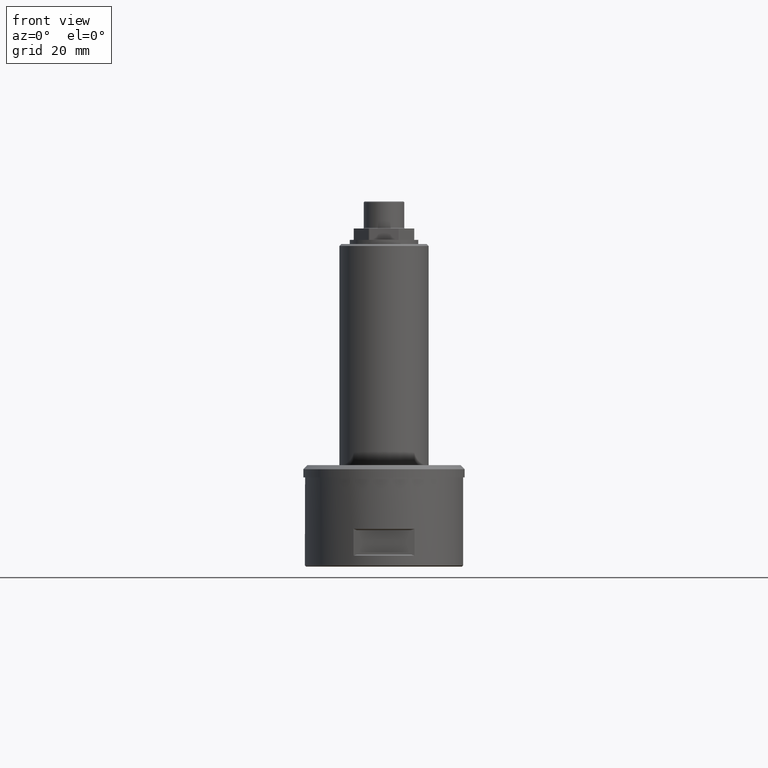
[diagram: clean part render]
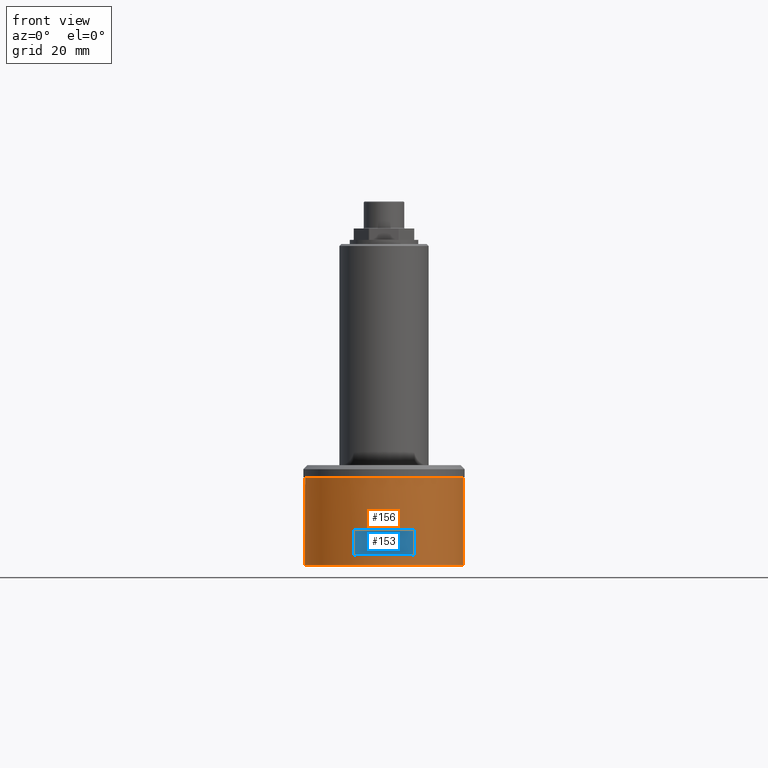
[diagram: same view with the hole feature highlighted: cylindrical wall and planar end face, labeled with their STEP entity ids]
A machine part, front view. The highlighted faces form one hole feature of diameter 39 mm: the cylindrical wall (entity #156, orange) and its adjacent planar end face (entity #153, blue) — they share a circular edge in the B-rep.
Wall:
#66=B_SPLINE_CURVE_WITH_KNOTS('',3,(#1736,#1737,#1738,#1739,#1740,#1741,
#1742,#1743,#1744,#1745,#1746,#1747,#1748,#1749,#1750,#1751),
 .UNSPECIFIED.,.F.,.F.,(4,3,3,3,3,4),(0.,0.208859270447399,0.417456296238441,
0.630055906062743,0.847987775070674,1.),.UNSPECIFIED.);
#67=B_SPLINE_CURVE_WITH_KNOTS('',3,(#1752,#1753,#1754,#1755,#1756,#1757,
#1758,#1759,#1760,#1761,#1762,#1763,#1764,#1765,#1766,#1767),
 .UNSPECIFIED.,.F.,.F.,(4,3,3,3,3,4),(0.,0.215976202929395,0.431772849622374,
0.65007420206776,0.867184707585039,1.),.UNSPECIFIED.);
#80=CYLINDRICAL_SURFACE('',#1030,19.5);
#156=ADVANCED_FACE('',(#338,#339,#340,#341),#80,.T.);
#242=LINE('',#1664,#286);
#243=LINE('',#1676,#287);
#245=LINE('',#1695,#289);
#247=LINE('',#1710,#291);
#250=LINE('',#1734,#294);
#251=LINE('',#1769,#295);
#286=VECTOR('',#1220,1.);
#287=VECTOR('',#1221,1.);
#289=VECTOR('',#1233,1.);
#291=VECTOR('',#1235,1.);
#294=VECTOR('',#1252,1.);
#295=VECTOR('',#1253,1.);
#338=FACE_BOUND('',#412,.T.);
#339=FACE_BOUND('',#413,.T.);
#340=FACE_BOUND('',#414,.T.);
#341=FACE_BOUND('',#415,.T.);
#412=EDGE_LOOP('',(#575));
#413=EDGE_LOOP('',(#576,#577,#578,#579,#580,#581));
#414=EDGE_LOOP('',(#582,#583,#584,#585));
#415=EDGE_LOOP('',(#586,#587,#588,#589));
#575=ORIENTED_EDGE('',*,*,#869,.T.);
#576=ORIENTED_EDGE('',*,*,#870,.F.);
#577=ORIENTED_EDGE('',*,*,#871,.T.);
#578=ORIENTED_EDGE('',*,*,#872,.T.);
#579=ORIENTED_EDGE('',*,*,#866,.T.);
#580=ORIENTED_EDGE('',*,*,#873,.T.);
#581=ORIENTED_EDGE('',*,*,#874,.T.);
#582=ORIENTED_EDGE('',*,*,#875,.T.);
#583=ORIENTED_EDGE('',*,*,#862,.T.);
#584=ORIENTED_EDGE('',*,*,#876,.T.);
#585=ORIENTED_EDGE('',*,*,#858,.T.);
#586=ORIENTED_EDGE('',*,*,#852,.F.);
#587=ORIENTED_EDGE('',*,*,#877,.T.);
#588=ORIENTED_EDGE('',*,*,#849,.F.);
#589=ORIENTED_EDGE('',*,*,#878,.T.);
#748=VERTEX_POINT('',#1665);
#749=VERTEX_POINT('',#1666);
#750=VERTEX_POINT('',#1675);
#751=VERTEX_POINT('',#1677);
#755=VERTEX_POINT('',#1696);
#756=VERTEX_POINT('',#1697);
#759=VERTEX_POINT('',#1709);
#760=VERTEX_POINT('',#1711);
#761=VERTEX_POINT('',#1724);
#762=VERTEX_POINT('',#1725);
#763=VERTEX_POINT('',#1730);
#764=VERTEX_POINT('',#1732);
#765=VERTEX_POINT('',#1733);
#766=VERTEX_POINT('',#1735);
#767=VERTEX_POINT('',#1768);
#849=EDGE_CURVE('',#748,#749,#242,.T.);
#852=EDGE_CURVE('',#750,#751,#243,.T.);
#858=EDGE_CURVE('',#755,#756,#245,.T.);
#862=EDGE_CURVE('',#760,#759,#247,.T.);
#866=EDGE_CURVE('',#761,#762,#936,.T.);
#869=EDGE_CURVE('',#763,#763,#937,.T.);
#870=EDGE_CURVE('',#764,#765,#938,.T.);
#871=EDGE_CURVE('',#764,#766,#250,.T.);
#872=EDGE_CURVE('',#766,#761,#66,.T.);
#873=EDGE_CURVE('',#762,#767,#67,.T.);
#874=EDGE_CURVE('',#767,#765,#251,.T.);
#875=EDGE_CURVE('',#756,#760,#939,.T.);
#876=EDGE_CURVE('',#759,#755,#940,.T.);
#877=EDGE_CURVE('',#750,#749,#941,.T.);
#878=EDGE_CURVE('',#748,#751,#942,.T.);
#936=CIRCLE('',#1022,19.5);
#937=CIRCLE('',#1024,19.5);
#938=CIRCLE('',#1025,19.5000000000001);
#939=CIRCLE('',#1026,19.5);
#940=CIRCLE('',#1027,19.5);
#941=CIRCLE('',#1028,19.5);
#942=CIRCLE('',#1029,19.5);
#1022=AXIS2_PLACEMENT_3D('',#1723,#1242,#1243);
#1024=AXIS2_PLACEMENT_3D('',#1729,#1248,#1249);
#1025=AXIS2_PLACEMENT_3D('',#1731,#1250,#1251);
#1026=AXIS2_PLACEMENT_3D('',#1770,#1254,#1255);
#1027=AXIS2_PLACEMENT_3D('',#1771,#1256,#1257);
#1028=AXIS2_PLACEMENT_3D('',#1772,#1258,#1259);
#1029=AXIS2_PLACEMENT_3D('',#1773,#1260,#1261);
#1030=AXIS2_PLACEMENT_3D('',#1774,#1262,#1263);
#1220=DIRECTION('',(0.,0.,1.));
#1221=DIRECTION('',(0.,0.,-1.));
#1233=DIRECTION('',(0.,0.,1.));
#1235=DIRECTION('',(0.,0.,-1.));
#1242=DIRECTION('',(0.,0.,-1.));
#1243=DIRECTION('',(-1.,0.,0.));
#1248=DIRECTION('',(0.,0.,1.));
#1249=DIRECTION('',(1.,0.,0.));
#1250=DIRECTION('',(0.,0.,1.));
#1251=DIRECTION('',(1.,0.,0.));
#1252=DIRECTION('',(0.,0.,-1.));
#1253=DIRECTION('',(0.,0.,1.));
#1254=DIRECTION('',(0.,0.,1.));
#1255=DIRECTION('',(1.,0.,0.));
#1256=DIRECTION('',(0.,0.,-1.));
#1257=DIRECTION('',(-1.,0.,0.));
#1258=DIRECTION('',(0.,0.,1.));
#1259=DIRECTION('',(-1.,0.,0.));
#1260=DIRECTION('',(0.,0.,-1.));
#1261=DIRECTION('',(1.,0.,0.));
#1262=DIRECTION('',(0.,0.,1.));
#1263=DIRECTION('',(1.,0.,0.));
#1664=CARTESIAN_POINT('',(-7.50000000000002,18.,0.));
#1665=CARTESIAN_POINT('',(-7.50000000000002,18.,2.69999999999999));
#1666=CARTESIAN_POINT('',(-7.50000000000002,18.,9.29999999998456));
#1675=CARTESIAN_POINT('',(7.50000000000002,18.,9.29999999998456));
#1676=CARTESIAN_POINT('',(7.50000000000002,18.,0.));
#1677=CARTESIAN_POINT('',(7.50000000000002,18.,2.69999999999999));
#1695=CARTESIAN_POINT('',(-7.50000000000002,-18.,0.));
#1696=CARTESIAN_POINT('',(-7.50000000000002,-18.,2.69999999999999));
#1697=CARTESIAN_POINT('',(-7.50000000000002,-18.,9.29999999998456));
#1709=CARTESIAN_POINT('',(7.50000000000002,-18.,2.69999999999999));
#1710=CARTESIAN_POINT('',(7.50000000000002,-18.,0.));
#1711=CARTESIAN_POINT('',(7.50000000000002,-18.,9.29999999998456));
#1723=CARTESIAN_POINT('',(0.,0.,15.5));
#1724=CARTESIAN_POINT('',(-2.,19.3971647412708,15.5));
#1725=CARTESIAN_POINT('',(2.,19.3971647412708,15.5));
#1729=CARTESIAN_POINT('',(0.,0.,0.29999999999999));
#1730=CARTESIAN_POINT('',(19.5,0.,0.29999999999999));
#1731=CARTESIAN_POINT('',(0.,0.,22.));
#1732=CARTESIAN_POINT('',(-5.,18.8480768249708,22.));
#1733=CARTESIAN_POINT('',(5.,18.8480768249708,22.));
#1734=CARTESIAN_POINT('',(-5.,18.8480768249708,0.));
#1735=CARTESIAN_POINT('',(-5.,18.8480768249708,18.5));
#1736=CARTESIAN_POINT('',(-5.,18.8480768249708,18.5));
#1737=CARTESIAN_POINT('',(-5.,18.8480768249708,18.1712240801533));
#1738=CARTESIAN_POINT('',(-4.94431953548575,18.8630780703131,17.8379299438462));
#1739=CARTESIAN_POINT('',(-4.83815628129102,18.8902684945928,17.5279563163272));
#1740=CARTESIAN_POINT('',(-4.73206839705938,18.9174396151944,17.2182027527186));
#1741=CARTESIAN_POINT('',(-4.57289213055614,18.9573288779685,16.9232723225049));
#1742=CARTESIAN_POINT('',(-4.37398378364309,19.0031120046278,16.6658241646452));
#1743=CARTESIAN_POINT('',(-4.17127404465591,19.049770105201,16.4034558442987));
#1744=CARTESIAN_POINT('',(-3.92191579445692,19.1036067398235,16.1728608493464));
#1745=CARTESIAN_POINT('',(-3.64542788517535,19.1562223711771,15.9915010315555));
#1746=CARTESIAN_POINT('',(-3.36220663328017,19.210119357197,15.8057245367652));
#1747=CARTESIAN_POINT('',(-3.04260585593299,19.264051176149,15.6665471574642));
#1748=CARTESIAN_POINT('',(-2.71250280399398,19.3104202061562,15.5858380699933));
#1749=CARTESIAN_POINT('',(-2.48058686127955,19.3429970552453,15.5291354009434));
#1750=CARTESIAN_POINT('',(-2.23968870841728,19.3724509532905,15.5));
#1751=CARTESIAN_POINT('',(-2.,19.3971647412708,15.5));
#1752=CARTESIAN_POINT('',(2.,19.3971647412708,15.5));
#1753=CARTESIAN_POINT('',(2.33818486907352,19.3622952256912,15.5));
#1754=CARTESIAN_POINT('',(2.68002074798442,19.3176233036949,15.558789140847));
#1755=CARTESIAN_POINT('',(2.99726822234027,19.2682740068577,15.670608529611));
#1756=CARTESIAN_POINT('',(3.31435435932037,19.2189498067879,15.7823710522114));
#1757=CARTESIAN_POINT('',(3.61568525744173,19.1637201320182,15.9500573681033));
#1758=CARTESIAN_POINT('',(3.87746398049628,19.1106062980732,16.1601006427756));
#1759=CARTESIAN_POINT('',(4.14216329357637,19.0568998883381,16.3724873099353));
#1760=CARTESIAN_POINT('',(4.37381764980178,19.004042380216,16.6342027021801));
#1761=CARTESIAN_POINT('',(4.55286851589345,18.9610492398756,16.9242898932355));
#1762=CARTESIAN_POINT('',(4.73086724917875,18.9183087344114,17.2126724834862));
#1763=CARTESIAN_POINT('',(4.86180379042969,18.8843408016981,17.5375010705628));
#1764=CARTESIAN_POINT('',(4.93331544810629,18.8656406912004,17.8709845137829));
#1765=CARTESIAN_POINT('',(4.97747479356462,18.854093138446,18.0769147222586));
#1766=CARTESIAN_POINT('',(5.,18.8480768249708,18.2890719446617));
#1767=CARTESIAN_POINT('',(5.,18.8480768249708,18.5));
#1768=CARTESIAN_POINT('',(5.,18.8480768249708,18.5));
#1769=CARTESIAN_POINT('',(5.,18.8480768249708,0.));
#1770=CARTESIAN_POINT('',(0.,0.,9.29999999998456));
#1771=CARTESIAN_POINT('',(0.,0.,2.69999999999999));
#1772=CARTESIAN_POINT('',(0.,0.,9.29999999998456));
#1773=CARTESIAN_POINT('',(0.,0.,2.69999999999999));
#1774=CARTESIAN_POINT('',(0.,0.,0.));
End face:
#62=B_SPLINE_CURVE_WITH_KNOTS('',3,(#1698,#1699,#1700,#1701),
 .UNSPECIFIED.,.F.,.F.,(4,4),(0.,1.),.UNSPECIFIED.);
#63=B_SPLINE_CURVE_WITH_KNOTS('',3,(#1705,#1706,#1707,#1708),
 .UNSPECIFIED.,.F.,.F.,(4,4),(0.,1.),.UNSPECIFIED.);
#64=B_SPLINE_CURVE_WITH_KNOTS('',3,(#1712,#1713,#1714,#1715),
 .UNSPECIFIED.,.F.,.F.,(4,4),(0.,1.),.UNSPECIFIED.);
#65=B_SPLINE_CURVE_WITH_KNOTS('',3,(#1716,#1717,#1718,#1719),
 .UNSPECIFIED.,.F.,.F.,(4,4),(0.,1.),.UNSPECIFIED.);
#102=FACE_OUTER_BOUND('',#408,.T.);
#153=ADVANCED_FACE('',(#102),#199,.F.);
#199=PLANE('',#1019);
#244=LINE('',#1690,#288);
#245=LINE('',#1695,#289);
#246=LINE('',#1703,#290);
#247=LINE('',#1710,#291);
#288=VECTOR('',#1228,1.);
#289=VECTOR('',#1233,1.);
#290=VECTOR('',#1234,1.);
#291=VECTOR('',#1235,1.);
#408=EDGE_LOOP('',(#560,#561,#562,#563,#564,#565,#566,#567));
#560=ORIENTED_EDGE('',*,*,#858,.F.);
#561=ORIENTED_EDGE('',*,*,#859,.T.);
#562=ORIENTED_EDGE('',*,*,#860,.T.);
#563=ORIENTED_EDGE('',*,*,#861,.T.);
#564=ORIENTED_EDGE('',*,*,#862,.F.);
#565=ORIENTED_EDGE('',*,*,#863,.T.);
#566=ORIENTED_EDGE('',*,*,#856,.T.);
#567=ORIENTED_EDGE('',*,*,#864,.T.);
#753=VERTEX_POINT('',#1691);
#754=VERTEX_POINT('',#1692);
#755=VERTEX_POINT('',#1696);
#756=VERTEX_POINT('',#1697);
#757=VERTEX_POINT('',#1702);
#758=VERTEX_POINT('',#1704);
#759=VERTEX_POINT('',#1709);
#760=VERTEX_POINT('',#1711);
#856=EDGE_CURVE('',#753,#754,#244,.T.);
#858=EDGE_CURVE('',#755,#756,#245,.T.);
#859=EDGE_CURVE('',#755,#757,#62,.T.);
#860=EDGE_CURVE('',#757,#758,#246,.T.);
#861=EDGE_CURVE('',#758,#759,#63,.T.);
#862=EDGE_CURVE('',#760,#759,#247,.T.);
#863=EDGE_CURVE('',#760,#753,#64,.T.);
#864=EDGE_CURVE('',#754,#756,#65,.T.);
#1019=AXIS2_PLACEMENT_3D('',#1720,#1236,#1237);
#1228=DIRECTION('',(-1.,0.,0.));
#1233=DIRECTION('',(0.,0.,1.));
#1234=DIRECTION('',(1.,0.,0.));
#1235=DIRECTION('',(0.,0.,-1.));
#1236=DIRECTION('',(0.,1.,0.));
#1237=DIRECTION('',(0.,0.,1.));
#1690=CARTESIAN_POINT('',(-8.07749999998543,-18.,8.99999999998455));
#1691=CARTESIAN_POINT('',(6.68131723539604,-18.,8.99999999998455));
#1692=CARTESIAN_POINT('',(-6.68131723539604,-18.,8.99999999998455));
#1695=CARTESIAN_POINT('',(-7.50000000000002,-18.,0.));
#1696=CARTESIAN_POINT('',(-7.50000000000002,-18.,2.69999999999999));
#1697=CARTESIAN_POINT('',(-7.50000000000002,-18.,9.29999999998456));
#1698=CARTESIAN_POINT('',(-7.50000000000002,-18.,2.69999999999999));
#1699=CARTESIAN_POINT('',(-7.2287329713317,-18.,2.80433347256473));
#1700=CARTESIAN_POINT('',(-6.95581167871184,-18.,2.90447997629446));
#1701=CARTESIAN_POINT('',(-6.68131723539604,-18.,2.99999999999999));
#1702=CARTESIAN_POINT('',(-6.68131723539604,-18.,2.99999999999999));
#1703=CARTESIAN_POINT('',(8.07749999998546,-18.,2.99999999999999));
#1704=CARTESIAN_POINT('',(6.68131723539604,-18.,2.99999999999999));
#1705=CARTESIAN_POINT('',(6.68131723539604,-18.,2.99999999999999));
#1706=CARTESIAN_POINT('',(6.95581167871184,-18.,2.90447997629446));
#1707=CARTESIAN_POINT('',(7.2287329713317,-18.,2.80433347256473));
#1708=CARTESIAN_POINT('',(7.50000000000002,-18.,2.69999999999999));
#1709=CARTESIAN_POINT('',(7.50000000000002,-18.,2.69999999999999));
#1710=CARTESIAN_POINT('',(7.50000000000002,-18.,0.));
#1711=CARTESIAN_POINT('',(7.50000000000002,-18.,9.29999999998456));
#1712=CARTESIAN_POINT('',(7.50000000000002,-18.,9.29999999998456));
#1713=CARTESIAN_POINT('',(7.2287329713317,-18.,9.19566652741982));
#1714=CARTESIAN_POINT('',(6.95581167871184,-18.,9.09552002369009));
#1715=CARTESIAN_POINT('',(6.68131723539604,-18.,8.99999999998455));
#1716=CARTESIAN_POINT('',(-6.68131723539604,-18.,8.99999999998455));
#1717=CARTESIAN_POINT('',(-6.95581167871184,-18.,9.09552002369009));
#1718=CARTESIAN_POINT('',(-7.2287329713317,-18.,9.19566652741982));
#1719=CARTESIAN_POINT('',(-7.50000000000002,-18.,9.29999999998456));
#1720=CARTESIAN_POINT('',(0.,-18.,0.));